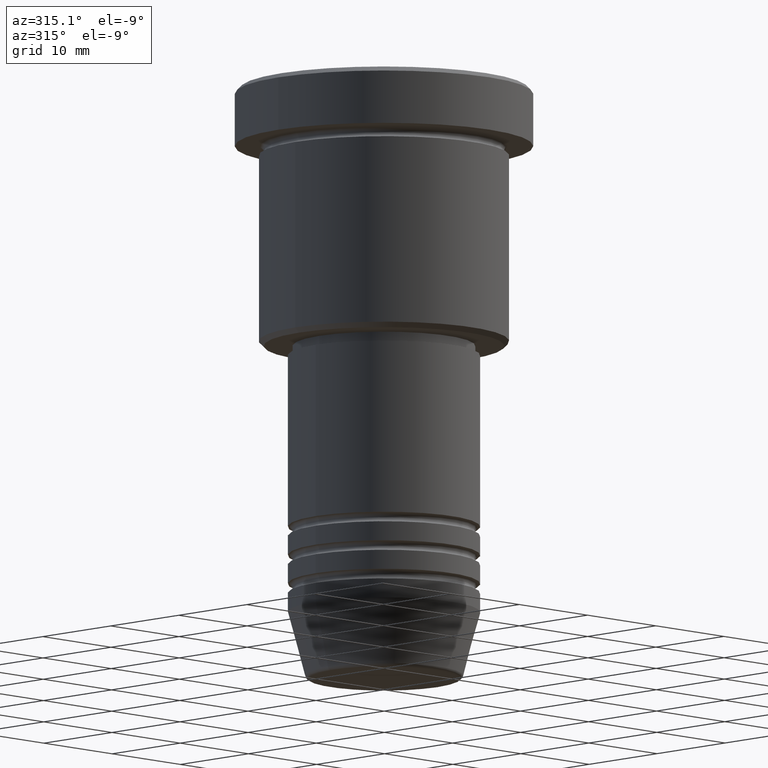
[diagram: clean part render]
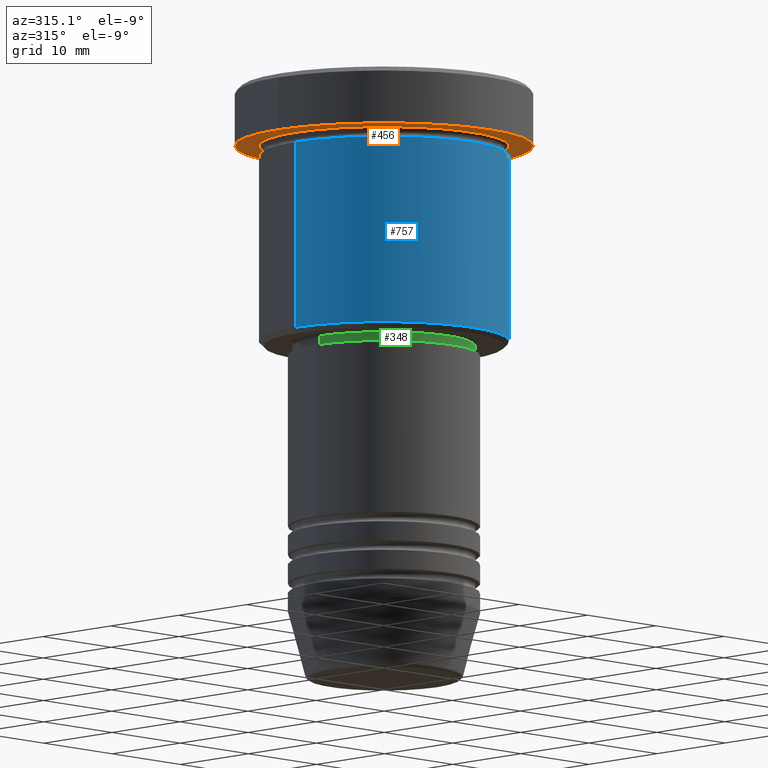
[diagram: same view with three faces highlighted in distinct colors, each labeled with its STEP entity id]
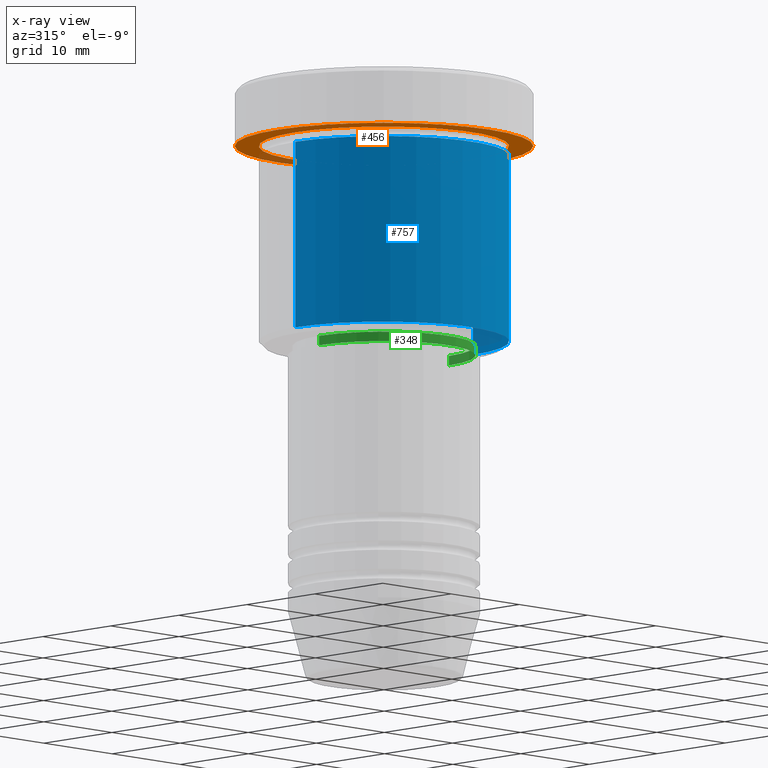
[diagram: x-ray of the same camera — body ghosted, the three highlighted faces saturated]
A machine part, auxiliary view with three faces highlighted in distinct colors.
The next image is the same camera in x-ray (body ghosted, the three faces saturated) — at least one of them is partly hidden behind the body in this view.
Their STEP definitions:

[orange] entity #456 — the highlighted planar face has unit normal (0, 0, -1).
#30 = DIRECTION ( 'NONE',  ( 1.000000000000000000, 0.000000000000000000, 0.000000000000000000 ) ) ;
#82 = ORIENTED_EDGE ( 'NONE', *, *, #615, .T. ) ;
#145 = DIRECTION ( 'NONE',  ( -1.000000000000000000, 0.000000000000000000, -0.000000000000000000 ) ) ;
#157 = VERTEX_POINT ( 'NONE', #956 ) ;
#221 = CIRCLE ( 'NONE', #677, 15.50000000000000000 ) ;
#225 = ORIENTED_EDGE ( 'NONE', *, *, #882, .T. ) ;
#252 = CARTESIAN_POINT ( 'NONE',  ( 0.000000000000000000, 0.000000000000000000, -5.999999999999995559 ) ) ;
#273 = DIRECTION ( 'NONE',  ( -0.000000000000000000, -0.000000000000000000, 1.000000000000000000 ) ) ;
#324 = DIRECTION ( 'NONE',  ( -1.000000000000000000, 0.000000000000000000, 0.000000000000000000 ) ) ;
#350 = DIRECTION ( 'NONE',  ( 1.000000000000000000, 0.000000000000000000, 0.000000000000000000 ) ) ;
#358 = DIRECTION ( 'NONE',  ( -0.000000000000000000, -0.000000000000000000, 1.000000000000000000 ) ) ;
#456 = ADVANCED_FACE ( 'NONE', ( #680, #497 ), #694, .T. ) ;
#497 = FACE_OUTER_BOUND ( 'NONE', #597, .T. ) ;
#506 = CARTESIAN_POINT ( 'NONE',  ( -13.00000000000000000, 0.000000000000000000, -5.999999999999994671 ) ) ;
#526 = DIRECTION ( 'NONE',  ( -0.000000000000000000, -0.000000000000000000, 1.000000000000000000 ) ) ;
#535 = VERTEX_POINT ( 'NONE', #955 ) ;
#575 = CIRCLE ( 'NONE', #907, 13.00000000000000000 ) ;
#589 = DIRECTION ( 'NONE',  ( 0.000000000000000000, 0.000000000000000000, -1.000000000000000000 ) ) ;
#597 = EDGE_LOOP ( 'NONE', ( #653, #911 ) ) ;
#615 = EDGE_CURVE ( 'NONE', #880, #849, #639, .T. ) ;
#639 = CIRCLE ( 'NONE', #805, 13.00000000000000000 ) ;
#653 = ORIENTED_EDGE ( 'NONE', *, *, #1149, .F. ) ;
#677 = AXIS2_PLACEMENT_3D ( 'NONE', #1136, #831, #30 ) ;
#680 = FACE_BOUND ( 'NONE', #991, .T. ) ;
#694 = PLANE ( 'NONE',  #842 ) ;
#715 = CIRCLE ( 'NONE', #807, 15.50000000000000000 ) ;
#783 = CARTESIAN_POINT ( 'NONE',  ( 13.00000000000000000, 1.592040838891559095E-15, -5.999999999999994671 ) ) ;
#805 = AXIS2_PLACEMENT_3D ( 'NONE', #252, #273, #972 ) ;
#807 = AXIS2_PLACEMENT_3D ( 'NONE', #810, #358, #350 ) ;
#810 = CARTESIAN_POINT ( 'NONE',  ( 0.000000000000000000, 0.000000000000000000, -5.999999999999995559 ) ) ;
#831 = DIRECTION ( 'NONE',  ( -0.000000000000000000, -0.000000000000000000, 1.000000000000000000 ) ) ;
#842 = AXIS2_PLACEMENT_3D ( 'NONE', #1062, #589, #145 ) ;
#849 = VERTEX_POINT ( 'NONE', #783 ) ;
#880 = VERTEX_POINT ( 'NONE', #506 ) ;
#882 = EDGE_CURVE ( 'NONE', #849, #880, #575, .T. ) ;
#907 = AXIS2_PLACEMENT_3D ( 'NONE', #975, #526, #324 ) ;
#911 = ORIENTED_EDGE ( 'NONE', *, *, #1071, .F. ) ;
#955 = CARTESIAN_POINT ( 'NONE',  ( -15.50000000000000000, 1.898202538678397557E-15, -5.999999999999995559 ) ) ;
#956 = CARTESIAN_POINT ( 'NONE',  ( 15.50000000000000000, 0.000000000000000000, -5.999999999999995559 ) ) ;
#972 = DIRECTION ( 'NONE',  ( -1.000000000000000000, 0.000000000000000000, 0.000000000000000000 ) ) ;
#975 = CARTESIAN_POINT ( 'NONE',  ( 0.000000000000000000, 0.000000000000000000, -5.999999999999995559 ) ) ;
#991 = EDGE_LOOP ( 'NONE', ( #82, #225 ) ) ;
#1062 = CARTESIAN_POINT ( 'NONE',  ( 0.000000000000000000, 15.50000000000000000, -5.999999999999995559 ) ) ;
#1071 = EDGE_CURVE ( 'NONE', #535, #157, #715, .T. ) ;
#1136 = CARTESIAN_POINT ( 'NONE',  ( 0.000000000000000000, 0.000000000000000000, -5.999999999999995559 ) ) ;
#1149 = EDGE_CURVE ( 'NONE', #157, #535, #221, .T. ) ;

[blue] entity #757 — the highlighted cylindrical surface (partial cylindrical patch) has radius 13 mm, axis along (-0, -0, 1).
#93 = FACE_OUTER_BOUND ( 'NONE', #986, .T. ) ;
#121 = EDGE_CURVE ( 'NONE', #1117, #1074, #370, .T. ) ;
#196 = DIRECTION ( 'NONE',  ( 1.000000000000000000, 0.000000000000000000, 0.000000000000000000 ) ) ;
#200 = CIRCLE ( 'NONE', #962, 13.00000000000000000 ) ;
#274 = DIRECTION ( 'NONE',  ( -1.000000000000000000, 0.000000000000000000, 0.000000000000000000 ) ) ;
#284 = LINE ( 'NONE', #644, #785 ) ;
#337 = DIRECTION ( 'NONE',  ( -0.000000000000000000, -0.000000000000000000, 1.000000000000000000 ) ) ;
#370 = CIRCLE ( 'NONE', #572, 13.00000000000000000 ) ;
#386 = EDGE_CURVE ( 'NONE', #1074, #1091, #284, .T. ) ;
#411 = ORIENTED_EDGE ( 'NONE', *, *, #386, .T. ) ;
#449 = DIRECTION ( 'NONE',  ( -0.000000000000000000, -0.000000000000000000, 1.000000000000000000 ) ) ;
#478 = CARTESIAN_POINT ( 'NONE',  ( 0.000000000000000000, 0.000000000000000000, -26.49999999999998934 ) ) ;
#521 = ORIENTED_EDGE ( 'NONE', *, *, #545, .F. ) ;
#523 = VECTOR ( 'NONE', #449, 1000.000000000000000 ) ;
#545 = EDGE_CURVE ( 'NONE', #1117, #861, #908, .T. ) ;
#547 = DIRECTION ( 'NONE',  ( -0.000000000000000000, -0.000000000000000000, 1.000000000000000000 ) ) ;
#572 = AXIS2_PLACEMENT_3D ( 'NONE', #478, #648, #274 ) ;
#613 = CARTESIAN_POINT ( 'NONE',  ( -13.00000000000000000, 1.592040838891559095E-15, 0.000000000000000000 ) ) ;
#614 = ORIENTED_EDGE ( 'NONE', *, *, #121, .T. ) ;
#617 = CARTESIAN_POINT ( 'NONE',  ( -13.00000000000000000, 1.592040838891559095E-15, -6.999999999999995559 ) ) ;
#632 = CARTESIAN_POINT ( 'NONE',  ( -13.00000000000000000, 1.592040838891559095E-15, -26.49999999999998934 ) ) ;
#644 = CARTESIAN_POINT ( 'NONE',  ( 13.00000000000000000, 0.000000000000000000, 0.000000000000000000 ) ) ;
#648 = DIRECTION ( 'NONE',  ( -0.000000000000000000, -0.000000000000000000, 1.000000000000000000 ) ) ;
#707 = CARTESIAN_POINT ( 'NONE',  ( 13.00000000000000000, 0.000000000000000000, -26.49999999999998934 ) ) ;
#718 = CARTESIAN_POINT ( 'NONE',  ( 13.00000000000000000, 0.000000000000000000, -6.999999999999995559 ) ) ;
#757 = ADVANCED_FACE ( 'NONE', ( #93 ), #912, .T. ) ;
#785 = VECTOR ( 'NONE', #825, 1000.000000000000000 ) ;
#825 = DIRECTION ( 'NONE',  ( -0.000000000000000000, -0.000000000000000000, 1.000000000000000000 ) ) ;
#850 = EDGE_CURVE ( 'NONE', #861, #1091, #200, .T. ) ;
#861 = VERTEX_POINT ( 'NONE', #617 ) ;
#862 = AXIS2_PLACEMENT_3D ( 'NONE', #1110, #547, #196 ) ;
#908 = LINE ( 'NONE', #613, #523 ) ;
#912 = CYLINDRICAL_SURFACE ( 'NONE', #862, 13.00000000000000000 ) ;
#923 = ORIENTED_EDGE ( 'NONE', *, *, #850, .F. ) ;
#962 = AXIS2_PLACEMENT_3D ( 'NONE', #1155, #337, #971 ) ;
#971 = DIRECTION ( 'NONE',  ( 1.000000000000000000, 0.000000000000000000, 0.000000000000000000 ) ) ;
#986 = EDGE_LOOP ( 'NONE', ( #521, #614, #411, #923 ) ) ;
#1074 = VERTEX_POINT ( 'NONE', #707 ) ;
#1091 = VERTEX_POINT ( 'NONE', #718 ) ;
#1110 = CARTESIAN_POINT ( 'NONE',  ( 0.000000000000000000, 0.000000000000000000, 0.000000000000000000 ) ) ;
#1117 = VERTEX_POINT ( 'NONE', #632 ) ;
#1155 = CARTESIAN_POINT ( 'NONE',  ( 0.000000000000000000, 0.000000000000000000, -6.999999999999995559 ) ) ;

[green] entity #348 — the highlighted cylindrical surface (partial cylindrical patch) has radius 9.5 mm, axis along (-0, -0, 1).
#29 = DIRECTION ( 'NONE',  ( 1.000000000000000000, 0.000000000000000000, 0.000000000000000000 ) ) ;
#64 = VERTEX_POINT ( 'NONE', #452 ) ;
#76 = DIRECTION ( 'NONE',  ( -0.000000000000000000, -0.000000000000000000, 1.000000000000000000 ) ) ;
#85 = AXIS2_PLACEMENT_3D ( 'NONE', #1130, #380, #931 ) ;
#90 = ORIENTED_EDGE ( 'NONE', *, *, #296, .T. ) ;
#132 = ORIENTED_EDGE ( 'NONE', *, *, #634, .F. ) ;
#139 = ORIENTED_EDGE ( 'NONE', *, *, #141, .F. ) ;
#141 = EDGE_CURVE ( 'NONE', #608, #64, #1041, .T. ) ;
#156 = CARTESIAN_POINT ( 'NONE',  ( 0.000000000000000000, 0.000000000000000000, -26.99999999999999645 ) ) ;
#161 = VERTEX_POINT ( 'NONE', #254 ) ;
#165 = VECTOR ( 'NONE', #666, 1000.000000000000000 ) ;
#214 = LINE ( 'NONE', #471, #165 ) ;
#254 = CARTESIAN_POINT ( 'NONE',  ( 9.500000000000000000, 0.000000000000000000, -26.99999999999999645 ) ) ;
#296 = EDGE_CURVE ( 'NONE', #608, #1166, #594, .T. ) ;
#303 = DIRECTION ( 'NONE',  ( -0.000000000000000000, -0.000000000000000000, 1.000000000000000000 ) ) ;
#319 = EDGE_CURVE ( 'NONE', #1166, #161, #214, .T. ) ;
#348 = ADVANCED_FACE ( 'NONE', ( #661 ), #475, .T. ) ;
#380 = DIRECTION ( 'NONE',  ( -0.000000000000000000, -0.000000000000000000, 1.000000000000000000 ) ) ;
#452 = CARTESIAN_POINT ( 'NONE',  ( -9.500000000000000000, 1.163414459189985485E-15, -26.99999999999999645 ) ) ;
#471 = CARTESIAN_POINT ( 'NONE',  ( 9.500000000000000000, 0.000000000000000000, 0.000000000000000000 ) ) ;
#475 = CYLINDRICAL_SURFACE ( 'NONE', #998, 9.500000000000000000 ) ;
#525 = CIRCLE ( 'NONE', #888, 9.500000000000000000 ) ;
#536 = VECTOR ( 'NONE', #781, 1000.000000000000000 ) ;
#594 = CIRCLE ( 'NONE', #85, 9.500000000000000000 ) ;
#608 = VERTEX_POINT ( 'NONE', #896 ) ;
#634 = EDGE_CURVE ( 'NONE', #64, #161, #525, .T. ) ;
#661 = FACE_OUTER_BOUND ( 'NONE', #1181, .T. ) ;
#666 = DIRECTION ( 'NONE',  ( -0.000000000000000000, -0.000000000000000000, 1.000000000000000000 ) ) ;
#751 = CARTESIAN_POINT ( 'NONE',  ( 9.500000000000000000, 0.000000000000000000, -27.99999999999999645 ) ) ;
#776 = ORIENTED_EDGE ( 'NONE', *, *, #319, .T. ) ;
#781 = DIRECTION ( 'NONE',  ( -0.000000000000000000, -0.000000000000000000, 1.000000000000000000 ) ) ;
#888 = AXIS2_PLACEMENT_3D ( 'NONE', #156, #76, #1160 ) ;
#896 = CARTESIAN_POINT ( 'NONE',  ( -9.500000000000000000, 1.163414459189985485E-15, -27.99999999999999645 ) ) ;
#931 = DIRECTION ( 'NONE',  ( 1.000000000000000000, 0.000000000000000000, 0.000000000000000000 ) ) ;
#998 = AXIS2_PLACEMENT_3D ( 'NONE', #1011, #303, #29 ) ;
#1011 = CARTESIAN_POINT ( 'NONE',  ( 0.000000000000000000, 0.000000000000000000, 0.000000000000000000 ) ) ;
#1041 = LINE ( 'NONE', #1056, #536 ) ;
#1056 = CARTESIAN_POINT ( 'NONE',  ( -9.500000000000000000, 1.163414459189985485E-15, 0.000000000000000000 ) ) ;
#1130 = CARTESIAN_POINT ( 'NONE',  ( 0.000000000000000000, 0.000000000000000000, -27.99999999999999645 ) ) ;
#1160 = DIRECTION ( 'NONE',  ( 1.000000000000000000, 0.000000000000000000, 0.000000000000000000 ) ) ;
#1166 = VERTEX_POINT ( 'NONE', #751 ) ;
#1181 = EDGE_LOOP ( 'NONE', ( #139, #90, #776, #132 ) ) ;